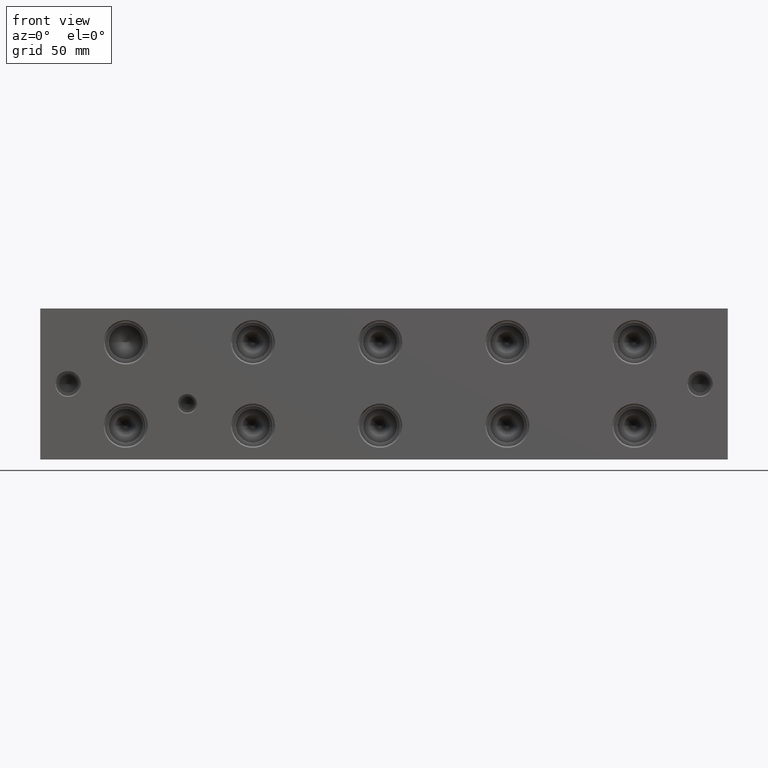
[diagram: clean part render]
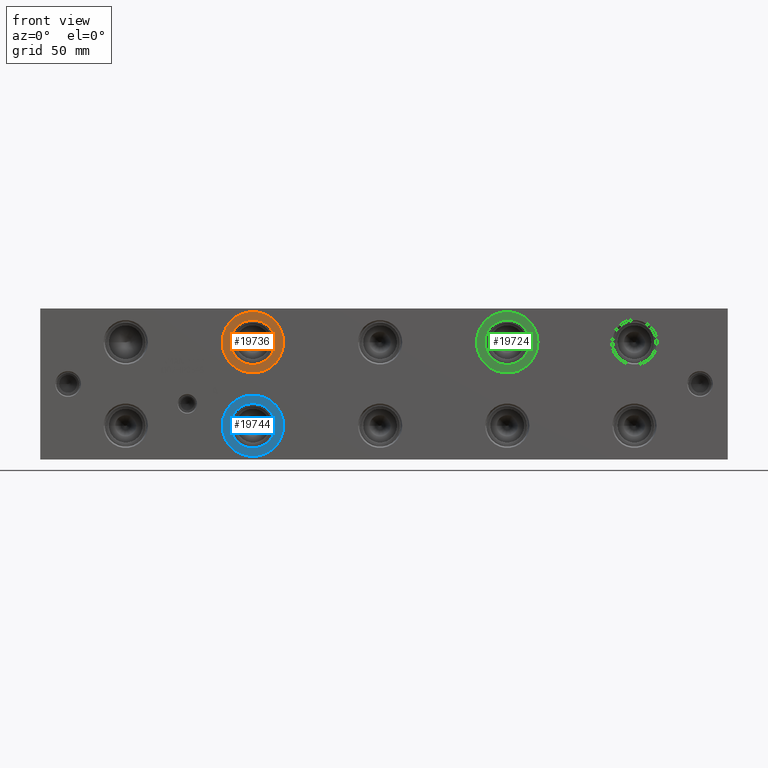
[diagram: same view with three faces highlighted in distinct colors, each labeled with its STEP entity id]
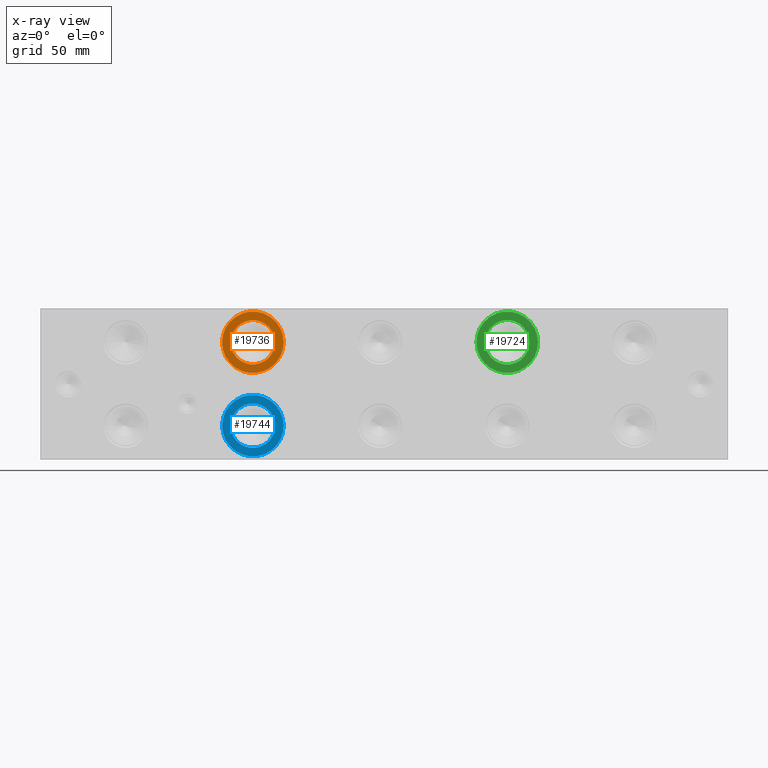
[diagram: x-ray of the same camera — body ghosted, the three highlighted faces saturated]
A machine part, front view with three faces highlighted in distinct colors.
The next image is the same camera in x-ray (body ghosted, the three faces saturated) — at least one of them is partly hidden behind the body in this view.
Their STEP definitions:

[orange] entity #19736 — the highlighted planar face has unit normal (0, -1, 0).
#1102=CIRCLE('',#21173,24.5618);
#1103=CIRCLE('',#21174,24.5618);
#1104=CIRCLE('',#21175,17.7546);
#1783=FACE_BOUND('',#3985,.T.);
#2793=FACE_OUTER_BOUND('',#3984,.T.);
#3984=EDGE_LOOP('',(#17013,#17014));
#3985=EDGE_LOOP('',(#17015));
#9218=VERTEX_POINT('',#33766);
#9219=VERTEX_POINT('',#33767);
#9220=VERTEX_POINT('',#33770);
#11912=EDGE_CURVE('',#9218,#9219,#1102,.T.);
#11913=EDGE_CURVE('',#9219,#9218,#1103,.T.);
#11914=EDGE_CURVE('',#9220,#9220,#1104,.T.);
#17013=ORIENTED_EDGE('',*,*,#11912,.T.);
#17014=ORIENTED_EDGE('',*,*,#11913,.T.);
#17015=ORIENTED_EDGE('',*,*,#11914,.F.);
#18198=PLANE('',#21172);
#19736=ADVANCED_FACE('',(#2793,#1783),#18198,.T.);
#21172=AXIS2_PLACEMENT_3D('',#33765,#25651,#25652);
#21173=AXIS2_PLACEMENT_3D('',#33768,#25653,#25654);
#21174=AXIS2_PLACEMENT_3D('',#33769,#25655,#25656);
#21175=AXIS2_PLACEMENT_3D('',#33771,#25657,#25658);
#25651=DIRECTION('center_axis',(0.,-1.,0.));
#25652=DIRECTION('ref_axis',(1.,0.,0.));
#25653=DIRECTION('center_axis',(0.,-1.,0.));
#25654=DIRECTION('ref_axis',(1.,0.,0.));
#25655=DIRECTION('center_axis',(0.,-1.,0.));
#25656=DIRECTION('ref_axis',(1.,0.,0.));
#25657=DIRECTION('center_axis',(0.,-1.,0.));
#25658=DIRECTION('ref_axis',(1.,0.,0.));
#33765=CARTESIAN_POINT('Origin',(169.8752,0.7874,93.6498));
#33766=CARTESIAN_POINT('',(194.437,0.7874,93.6498));
#33767=CARTESIAN_POINT('',(145.3134,0.7874,93.6498));
#33768=CARTESIAN_POINT('Origin',(169.8752,0.7874,93.6498));
#33769=CARTESIAN_POINT('Origin',(169.8752,0.7874,93.6498));
#33770=CARTESIAN_POINT('',(152.1206,0.7874,93.6498));
#33771=CARTESIAN_POINT('Origin',(169.8752,0.7874,93.6498));

[blue] entity #19744 — the highlighted planar face has unit normal (0, -1, 0).
#1108=CIRCLE('',#21187,24.5618);
#1109=CIRCLE('',#21188,24.5618);
#1110=CIRCLE('',#21189,17.7546);
#1785=FACE_BOUND('',#3995,.T.);
#2801=FACE_OUTER_BOUND('',#3994,.T.);
#3994=EDGE_LOOP('',(#17047,#17048));
#3995=EDGE_LOOP('',(#17049));
#9226=VERTEX_POINT('',#33794);
#9227=VERTEX_POINT('',#33795);
#9228=VERTEX_POINT('',#33798);
#11924=EDGE_CURVE('',#9226,#9227,#1108,.T.);
#11925=EDGE_CURVE('',#9227,#9226,#1109,.T.);
#11926=EDGE_CURVE('',#9228,#9228,#1110,.T.);
#17047=ORIENTED_EDGE('',*,*,#11924,.T.);
#17048=ORIENTED_EDGE('',*,*,#11925,.T.);
#17049=ORIENTED_EDGE('',*,*,#11926,.F.);
#18200=PLANE('',#21186);
#19744=ADVANCED_FACE('',(#2801,#1785),#18200,.T.);
#21186=AXIS2_PLACEMENT_3D('',#33793,#25685,#25686);
#21187=AXIS2_PLACEMENT_3D('',#33796,#25687,#25688);
#21188=AXIS2_PLACEMENT_3D('',#33797,#25689,#25690);
#21189=AXIS2_PLACEMENT_3D('',#33799,#25691,#25692);
#25685=DIRECTION('center_axis',(0.,-1.,0.));
#25686=DIRECTION('ref_axis',(1.,0.,0.));
#25687=DIRECTION('center_axis',(0.,-1.,0.));
#25688=DIRECTION('ref_axis',(1.,0.,0.));
#25689=DIRECTION('center_axis',(0.,-1.,0.));
#25690=DIRECTION('ref_axis',(1.,0.,0.));
#25691=DIRECTION('center_axis',(0.,-1.,0.));
#25692=DIRECTION('ref_axis',(1.,0.,0.));
#33793=CARTESIAN_POINT('Origin',(169.8752,0.7874,26.9748));
#33794=CARTESIAN_POINT('',(194.437,0.7874,26.9748));
#33795=CARTESIAN_POINT('',(145.3134,0.7874,26.9748));
#33796=CARTESIAN_POINT('Origin',(169.8752,0.7874,26.9748));
#33797=CARTESIAN_POINT('Origin',(169.8752,0.7874,26.9748));
#33798=CARTESIAN_POINT('',(152.1206,0.7874,26.9748));
#33799=CARTESIAN_POINT('Origin',(169.8752,0.7874,26.9748));

[green] entity #19724 — the highlighted planar face has unit normal (0, -1, 0).
#1093=CIRCLE('',#21152,24.5618);
#1094=CIRCLE('',#21153,24.5618);
#1095=CIRCLE('',#21154,17.7546);
#1780=FACE_BOUND('',#3970,.T.);
#2781=FACE_OUTER_BOUND('',#3969,.T.);
#3969=EDGE_LOOP('',(#16962,#16963));
#3970=EDGE_LOOP('',(#16964));
#9206=VERTEX_POINT('',#33724);
#9207=VERTEX_POINT('',#33725);
#9208=VERTEX_POINT('',#33728);
#11894=EDGE_CURVE('',#9206,#9207,#1093,.T.);
#11895=EDGE_CURVE('',#9207,#9206,#1094,.T.);
#11896=EDGE_CURVE('',#9208,#9208,#1095,.T.);
#16962=ORIENTED_EDGE('',*,*,#11894,.T.);
#16963=ORIENTED_EDGE('',*,*,#11895,.T.);
#16964=ORIENTED_EDGE('',*,*,#11896,.F.);
#18195=PLANE('',#21151);
#19724=ADVANCED_FACE('',(#2781,#1780),#18195,.T.);
#21151=AXIS2_PLACEMENT_3D('',#33723,#25600,#25601);
#21152=AXIS2_PLACEMENT_3D('',#33726,#25602,#25603);
#21153=AXIS2_PLACEMENT_3D('',#33727,#25604,#25605);
#21154=AXIS2_PLACEMENT_3D('',#33729,#25606,#25607);
#25600=DIRECTION('center_axis',(0.,-1.,0.));
#25601=DIRECTION('ref_axis',(1.,0.,0.));
#25602=DIRECTION('center_axis',(0.,-1.,0.));
#25603=DIRECTION('ref_axis',(1.,0.,0.));
#25604=DIRECTION('center_axis',(0.,-1.,0.));
#25605=DIRECTION('ref_axis',(1.,0.,0.));
#25606=DIRECTION('center_axis',(0.,-1.,0.));
#25607=DIRECTION('ref_axis',(1.,0.,0.));
#33723=CARTESIAN_POINT('Origin',(373.0752,0.7874,93.6498));
#33724=CARTESIAN_POINT('',(397.637,0.7874,93.6498));
#33725=CARTESIAN_POINT('',(348.5134,0.7874,93.6498));
#33726=CARTESIAN_POINT('Origin',(373.0752,0.7874,93.6498));
#33727=CARTESIAN_POINT('Origin',(373.0752,0.7874,93.6498));
#33728=CARTESIAN_POINT('',(355.3206,0.7874,93.6498));
#33729=CARTESIAN_POINT('Origin',(373.0752,0.7874,93.6498));